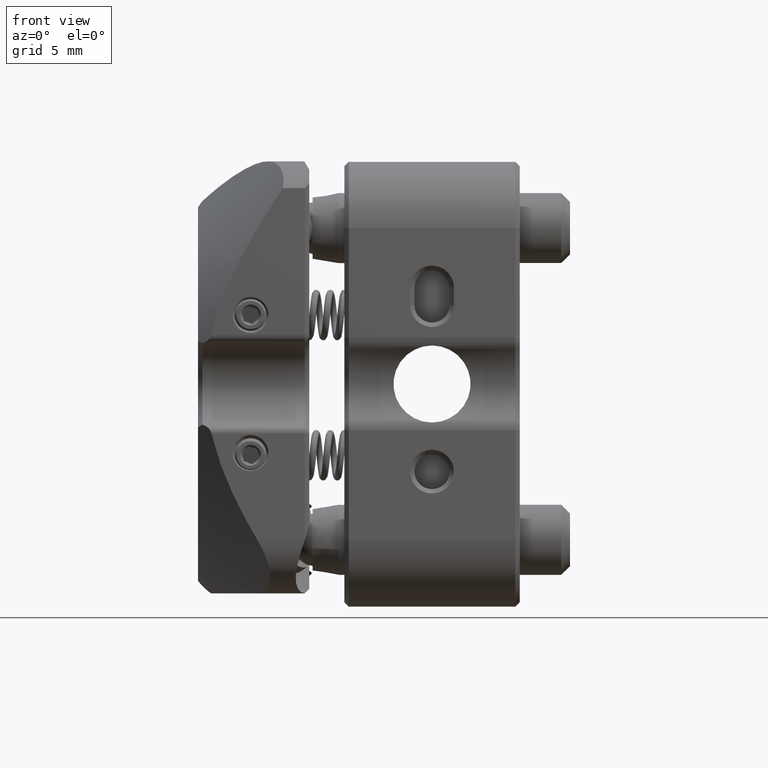
[diagram: clean part render]
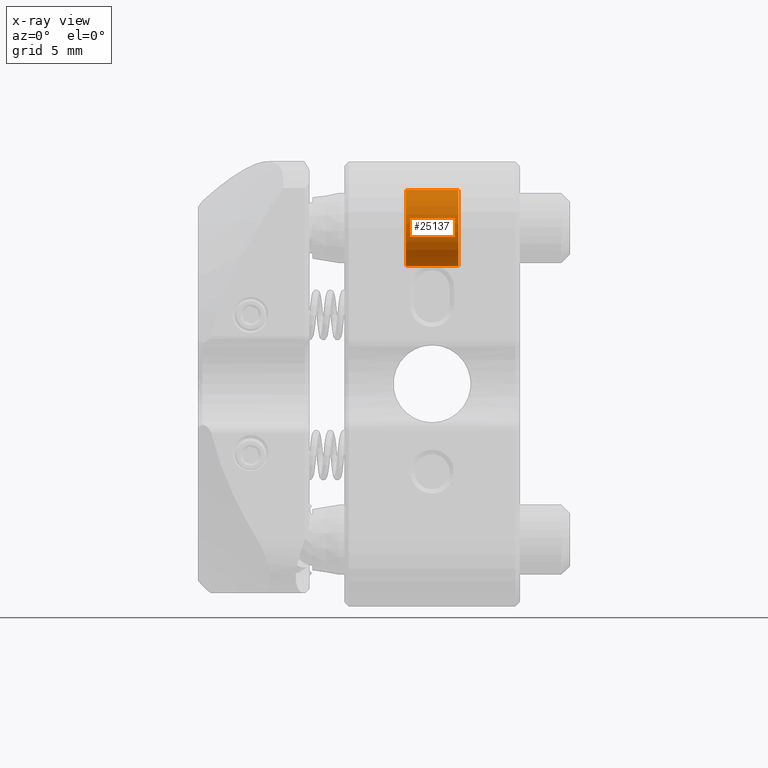
[diagram: x-ray — body ghosted, one internal face saturated and labeled with its STEP entity id]
A machine part, front view, then the same camera in x-ray: the body is ghosted and one INTERNAL B-rep face — a face not visible from any outside direction — is saturated and labeled: STEP entity #25137.
In plain terms, the highlighted cylindrical surface (bore or boss wall) has radius 2.175 mm, axis along (1, 0, -0).
Its self-contained STEP definition (entity closure, byte-faithful):
#235 = ORIENTED_EDGE ( 'NONE', *, *, #41203, .F. ) ;
#292 = CARTESIAN_POINT ( 'NONE',  ( -1.500000000000000000, -8.889999999999997016, 8.889999999999993463 ) ) ;
#1414 = EDGE_LOOP ( 'NONE', ( #22155 ) ) ;
#2440 = DIRECTION ( 'NONE',  ( 1.000000000000000000, 0.000000000000000000, -0.000000000000000000 ) ) ;
#2538 = VERTEX_POINT ( 'NONE', #5680 ) ;
#5680 = CARTESIAN_POINT ( 'NONE',  ( -1.500000000000000000, -8.889999999999997016, 6.714999999999993641 ) ) ;
#6002 = EDGE_LOOP ( 'NONE', ( #235 ) ) ;
#6008 = AXIS2_PLACEMENT_3D ( 'NONE', #36025, #2440, #39887 ) ;
#7299 = DIRECTION ( 'NONE',  ( 1.000000000000000000, 0.000000000000000000, -0.000000000000000000 ) ) ;
#12688 = CARTESIAN_POINT ( 'NONE',  ( 1.500000000000000000, -8.889999999999997016, 6.714999999999993641 ) ) ;
#14008 = CARTESIAN_POINT ( 'NONE',  ( 1.500000000000000000, -8.889999999999997016, 8.889999999999993463 ) ) ;
#14238 = DIRECTION ( 'NONE',  ( -1.000000000000000000, -0.000000000000000000, 0.000000000000000000 ) ) ;
#17412 = FACE_OUTER_BOUND ( 'NONE', #6002, .T. ) ;
#21555 = AXIS2_PLACEMENT_3D ( 'NONE', #292, #7299, #28820 ) ;
#22155 = ORIENTED_EDGE ( 'NONE', *, *, #34120, .F. ) ;
#25137 = ADVANCED_FACE ( 'NONE', ( #32630, #17412 ), #31921, .F. ) ;
#28302 = CIRCLE ( 'NONE', #44538, 2.174999999999999822 ) ;
#28820 = DIRECTION ( 'NONE',  ( 0.000000000000000000, 0.000000000000000000, -1.000000000000000000 ) ) ;
#31921 = CYLINDRICAL_SURFACE ( 'NONE', #6008, 2.174999999999999822 ) ;
#32019 = VERTEX_POINT ( 'NONE', #12688 ) ;
#32630 = FACE_OUTER_BOUND ( 'NONE', #1414, .T. ) ;
#34120 = EDGE_CURVE ( 'NONE', #2538, #2538, #42425, .T. ) ;
#36025 = CARTESIAN_POINT ( 'NONE',  ( -1.500000000000000000, -8.889999999999997016, 8.889999999999993463 ) ) ;
#39887 = DIRECTION ( 'NONE',  ( 0.000000000000000000, 0.000000000000000000, -1.000000000000000000 ) ) ;
#41203 = EDGE_CURVE ( 'NONE', #32019, #32019, #28302, .T. ) ;
#42425 = CIRCLE ( 'NONE', #21555, 2.174999999999999822 ) ;
#43754 = DIRECTION ( 'NONE',  ( 0.000000000000000000, 0.000000000000000000, -1.000000000000000000 ) ) ;
#44538 = AXIS2_PLACEMENT_3D ( 'NONE', #14008, #14238, #43754 ) ;